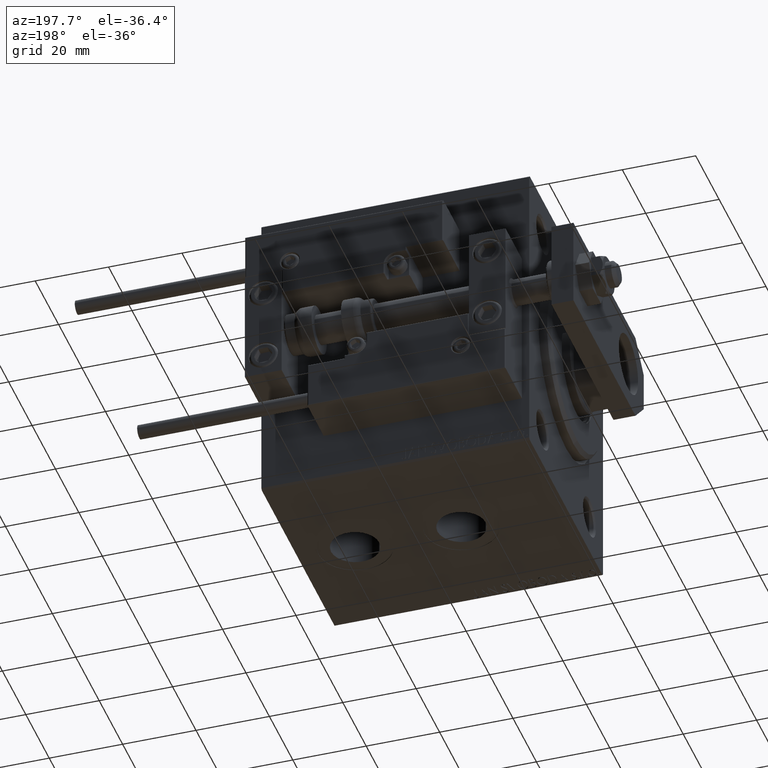
[diagram: clean part render]
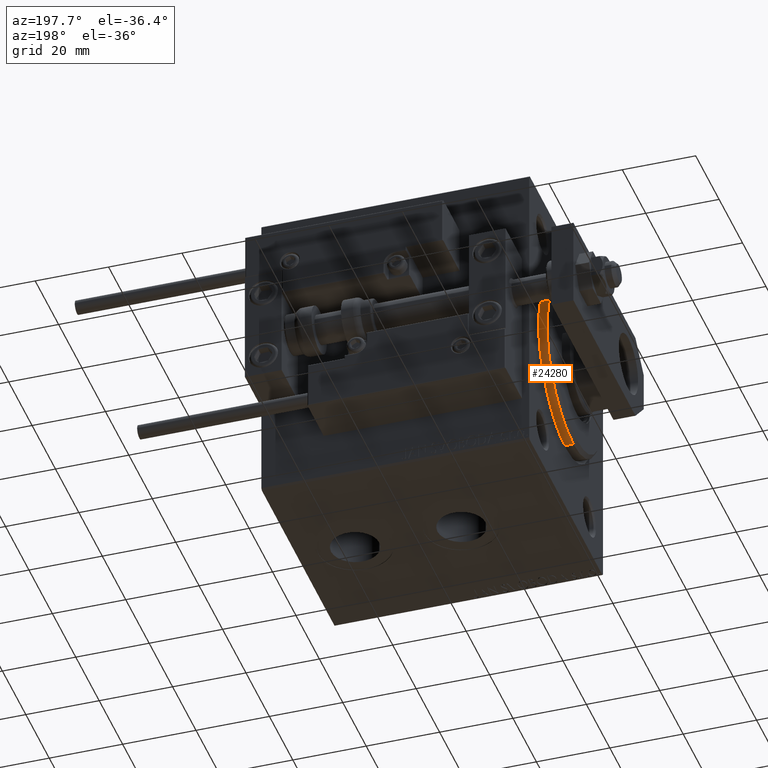
[diagram: same view with one face highlighted and labeled with its STEP entity id]
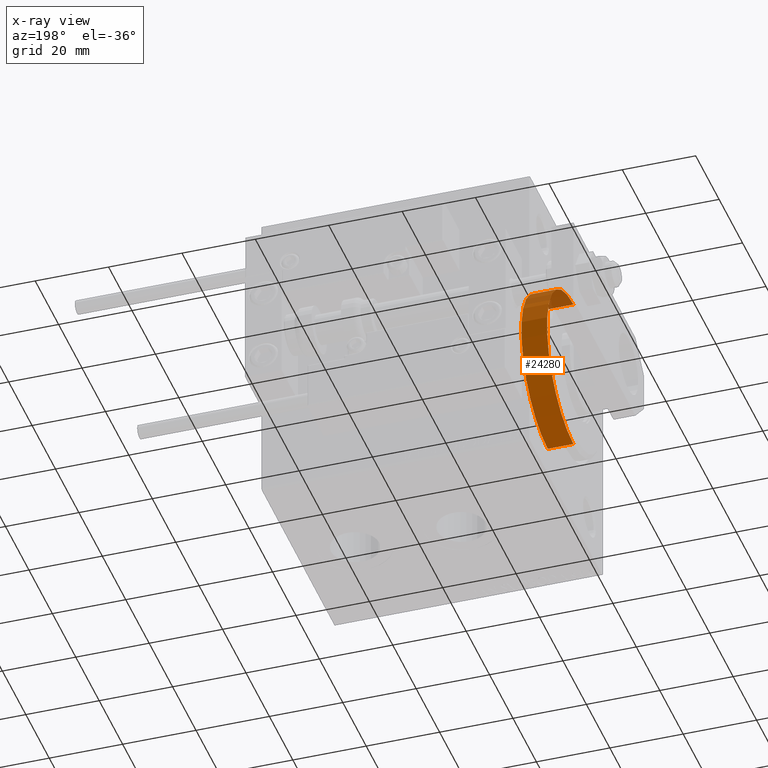
[diagram: x-ray of the same camera — body ghosted, the highlighted face saturated]
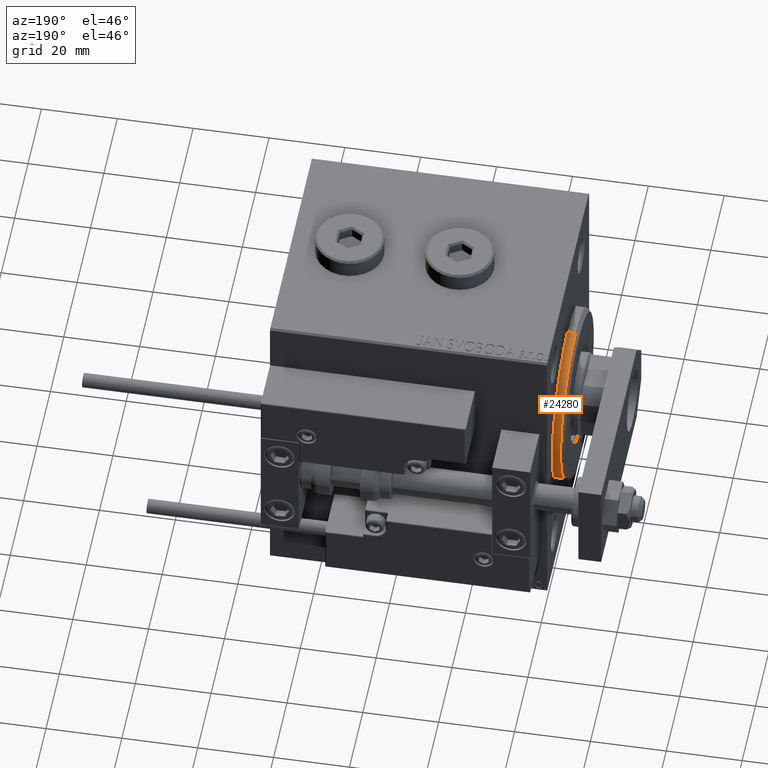
[diagram: same view with one face highlighted and labeled with its STEP entity id]
A machine part, auxiliary view. The second image highlights one B-rep face of the part: STEP entity #24280.
The next image is the same camera in x-ray: the body ghosted, the highlighted face saturated — about 13% of this face is hidden behind the body in this view.
A second angle (auxiliary view) of the same face is appended — the face is thin or edge-on in the first view.
In plain terms, the highlighted cylindrical surface (partial cylindrical patch) has radius 22.5 mm, axis along (1, -0, -0).
Its self-contained STEP definition (entity closure, byte-faithful):
#143 = ORIENTED_EDGE ( 'NONE', *, *, #11362, .T. ) ;
#992 = CIRCLE ( 'NONE', #36527, 22.50000000000000355 ) ;
#1282 = EDGE_CURVE ( 'NONE', #6586, #42437, #992, .T. ) ;
#3223 = DIRECTION ( 'NONE',  ( -1.000000000000000000, 0.000000000000000000, 0.000000000000000000 ) ) ;
#3739 = VECTOR ( 'NONE', #43836, 1000.000000000000000 ) ;
#3773 = VECTOR ( 'NONE', #7724, 1000.000000000000000 ) ;
#4874 = CYLINDRICAL_SURFACE ( 'NONE', #21128, 22.50000000000000355 ) ;
#4973 = EDGE_LOOP ( 'NONE', ( #28556, #47843, #143, #25033 ) ) ;
#6586 = VERTEX_POINT ( 'NONE', #26513 ) ;
#7724 = DIRECTION ( 'NONE',  ( -1.000000000000000000, -0.000000000000000000, -0.000000000000000000 ) ) ;
#8614 = VERTEX_POINT ( 'NONE', #33428 ) ;
#8812 = EDGE_CURVE ( 'NONE', #8614, #27055, #29032, .T. ) ;
#9111 = DIRECTION ( 'NONE',  ( 0.000000000000000000, 0.000000000000000000, 1.000000000000000000 ) ) ;
#9966 = EDGE_CURVE ( 'NONE', #6586, #8614, #19433, .T. ) ;
#10633 = DIRECTION ( 'NONE',  ( 0.000000000000000000, 0.000000000000000000, 1.000000000000000000 ) ) ;
#11362 = EDGE_CURVE ( 'NONE', #42437, #27055, #11678, .T. ) ;
#11678 = LINE ( 'NONE', #44024, #3773 ) ;
#11970 = DIRECTION ( 'NONE',  ( -1.000000000000000000, 0.000000000000000000, 0.000000000000000000 ) ) ;
#19433 = LINE ( 'NONE', #23674, #3739 ) ;
#20180 = CARTESIAN_POINT ( 'NONE',  ( 1.999999999999992228, 0.000000000000000000, 0.000000000000000000 ) ) ;
#21128 = AXIS2_PLACEMENT_3D ( 'NONE', #36928, #28703, #9111 ) ;
#23674 = CARTESIAN_POINT ( 'NONE',  ( 3.000000000000000000, 2.755455298081545172E-15, -22.50000000000000355 ) ) ;
#24280 = ADVANCED_FACE ( 'NONE', ( #45408 ), #4874, .T. ) ;
#24829 = AXIS2_PLACEMENT_3D ( 'NONE', #31022, #3223, #10633 ) ;
#25033 = ORIENTED_EDGE ( 'NONE', *, *, #8812, .F. ) ;
#26513 = CARTESIAN_POINT ( 'NONE',  ( 1.999999999999992228, 2.755455298081545172E-15, -22.50000000000000355 ) ) ;
#27055 = VERTEX_POINT ( 'NONE', #28141 ) ;
#28141 = CARTESIAN_POINT ( 'NONE',  ( -5.000000000000000000, 0.000000000000000000, 22.50000000000000355 ) ) ;
#28556 = ORIENTED_EDGE ( 'NONE', *, *, #9966, .F. ) ;
#28703 = DIRECTION ( 'NONE',  ( -1.000000000000000000, -0.000000000000000000, -0.000000000000000000 ) ) ;
#29032 = CIRCLE ( 'NONE', #24829, 22.50000000000000355 ) ;
#31022 = CARTESIAN_POINT ( 'NONE',  ( -5.000000000000000000, 0.000000000000000000, 0.000000000000000000 ) ) ;
#33428 = CARTESIAN_POINT ( 'NONE',  ( -5.000000000000000000, 2.755455298081545172E-15, -22.50000000000000355 ) ) ;
#36527 = AXIS2_PLACEMENT_3D ( 'NONE', #20180, #11970, #40868 ) ;
#36928 = CARTESIAN_POINT ( 'NONE',  ( 3.000000000000000000, 0.000000000000000000, 0.000000000000000000 ) ) ;
#40868 = DIRECTION ( 'NONE',  ( 0.000000000000000000, 0.000000000000000000, -1.000000000000000000 ) ) ;
#42437 = VERTEX_POINT ( 'NONE', #43617 ) ;
#43617 = CARTESIAN_POINT ( 'NONE',  ( 1.999999999999992228, 0.000000000000000000, 22.50000000000000355 ) ) ;
#43836 = DIRECTION ( 'NONE',  ( -1.000000000000000000, -0.000000000000000000, -0.000000000000000000 ) ) ;
#44024 = CARTESIAN_POINT ( 'NONE',  ( 3.000000000000000000, 0.000000000000000000, 22.50000000000000355 ) ) ;
#45408 = FACE_OUTER_BOUND ( 'NONE', #4973, .T. ) ;
#47843 = ORIENTED_EDGE ( 'NONE', *, *, #1282, .T. ) ;